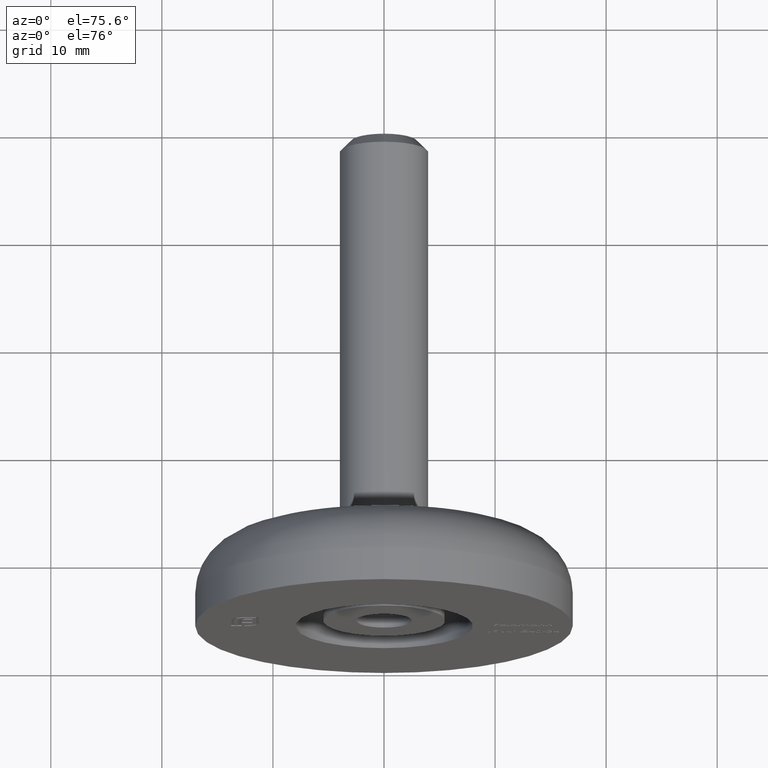
[diagram: clean part render]
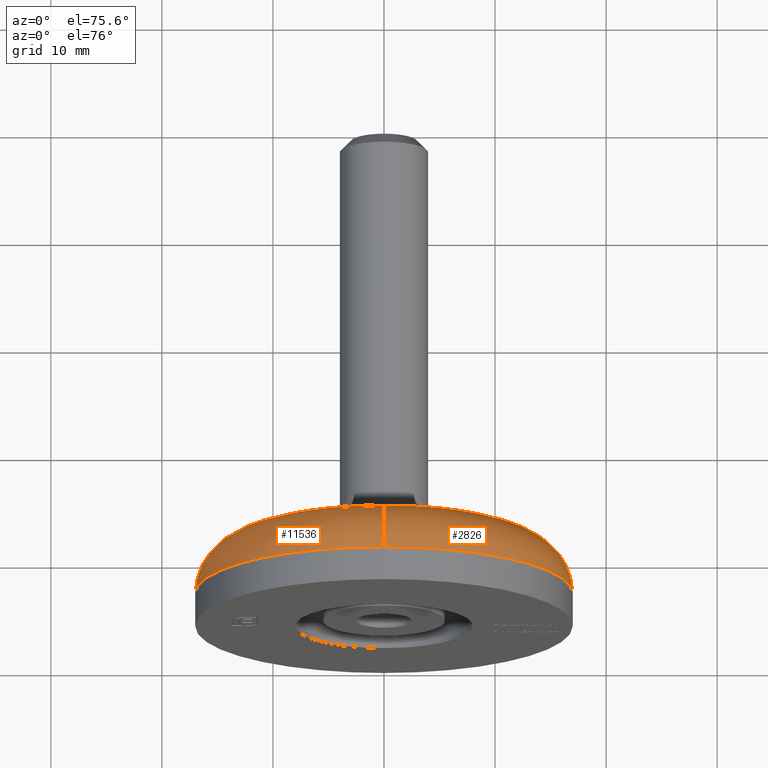
[diagram: same view with one multi-face feature highlighted, each face labeled with its STEP entity id]
A machine part, auxiliary view. The highlighted faces form ONE feature: a constant-radius fillet chain: 2 tangent blend faces with common blend radius 5 mm. The faces share edges in the B-rep.
Their STEP definitions:
[1] entity #2826 (Torus):
#54 = VERTEX_POINT ( 'NONE', #11134 ) ;
#205 = DIRECTION ( 'NONE',  ( -1.000000000000000000, 0.000000000000000000, 0.000000000000000000 ) ) ;
#220 = ORIENTED_EDGE ( 'NONE', *, *, #4275, .T. ) ;
#243 = CIRCLE ( 'NONE', #2223, 5.000000000000000888 ) ;
#447 = DIRECTION ( 'NONE',  ( 0.000000000000000000, 0.000000000000000000, 1.000000000000000000 ) ) ;
#471 = VERTEX_POINT ( 'NONE', #13565 ) ;
#637 = CARTESIAN_POINT ( 'NONE',  ( 0.000000000000000000, 7.999999999999998224, 0.000000000000000000 ) ) ;
#1417 = DIRECTION ( 'NONE',  ( 0.000000000000000000, 0.000000000000000000, 1.000000000000000000 ) ) ;
#1624 = CIRCLE ( 'NONE', #10822, 17.00000000000000000 ) ;
#1798 = DIRECTION ( 'NONE',  ( 0.000000000000000000, 0.000000000000000000, 1.000000000000000000 ) ) ;
#2223 = AXIS2_PLACEMENT_3D ( 'NONE', #9576, #205, #1417 ) ;
#2826 = ADVANCED_FACE ( 'NONE', ( #9404 ), #6311, .T. ) ;
#2898 = CARTESIAN_POINT ( 'NONE',  ( 1.469576158976823947E-15, 2.999999999999998224, -12.00000000000000000 ) ) ;
#2999 = EDGE_CURVE ( 'NONE', #5399, #471, #243, .T. ) ;
#4275 = EDGE_CURVE ( 'NONE', #7720, #54, #9375, .T. ) ;
#4514 = CARTESIAN_POINT ( 'NONE',  ( 2.081899558550500280E-15, 2.999999999999998224, 17.00000000000000000 ) ) ;
#4948 = AXIS2_PLACEMENT_3D ( 'NONE', #2898, #5178, #7518 ) ;
#5178 = DIRECTION ( 'NONE',  ( 1.000000000000000000, -0.000000000000000000, 1.224646799147353207E-16 ) ) ;
#5399 = VERTEX_POINT ( 'NONE', #4514 ) ;
#5567 = ORIENTED_EDGE ( 'NONE', *, *, #2999, .F. ) ;
#6099 = EDGE_CURVE ( 'NONE', #7720, #5399, #1624, .T. ) ;
#6311 = TOROIDAL_SURFACE ( 'NONE', #8332, 12.00000000000000000, 5.000000000000000000 ) ;
#6356 = EDGE_LOOP ( 'NONE', ( #13847, #220, #8221, #5567 ) ) ;
#6366 = DIRECTION ( 'NONE',  ( -0.000000000000000000, -1.000000000000000000, -0.000000000000000000 ) ) ;
#7518 = DIRECTION ( 'NONE',  ( 1.224646799147352961E-16, 0.000000000000000000, -1.000000000000000000 ) ) ;
#7720 = VERTEX_POINT ( 'NONE', #11957 ) ;
#8221 = ORIENTED_EDGE ( 'NONE', *, *, #13351, .F. ) ;
#8332 = AXIS2_PLACEMENT_3D ( 'NONE', #9960, #11153, #14875 ) ;
#8599 = CARTESIAN_POINT ( 'NONE',  ( 0.000000000000000000, 2.999999999999998224, 0.000000000000000000 ) ) ;
#8844 = DIRECTION ( 'NONE',  ( 0.000000000000000000, 1.000000000000000000, 0.000000000000000000 ) ) ;
#9375 = CIRCLE ( 'NONE', #4948, 5.000000000000000888 ) ;
#9404 = FACE_OUTER_BOUND ( 'NONE', #6356, .T. ) ;
#9576 = CARTESIAN_POINT ( 'NONE',  ( 0.000000000000000000, 2.999999999999998224, 12.00000000000000000 ) ) ;
#9621 = CIRCLE ( 'NONE', #13984, 12.00000000000000000 ) ;
#9960 = CARTESIAN_POINT ( 'NONE',  ( 0.000000000000000000, 2.999999999999998224, 0.000000000000000000 ) ) ;
#10822 = AXIS2_PLACEMENT_3D ( 'NONE', #8599, #6366, #447 ) ;
#11134 = CARTESIAN_POINT ( 'NONE',  ( 1.775737858763662015E-15, 7.999999999999998224, -12.00000000000000000 ) ) ;
#11153 = DIRECTION ( 'NONE',  ( 0.000000000000000000, 1.000000000000000000, 0.000000000000000000 ) ) ;
#11957 = CARTESIAN_POINT ( 'NONE',  ( 0.000000000000000000, 2.999999999999998224, -17.00000000000000000 ) ) ;
#13351 = EDGE_CURVE ( 'NONE', #471, #54, #9621, .T. ) ;
#13565 = CARTESIAN_POINT ( 'NONE',  ( 0.000000000000000000, 7.999999999999998224, 12.00000000000000000 ) ) ;
#13847 = ORIENTED_EDGE ( 'NONE', *, *, #6099, .F. ) ;
#13984 = AXIS2_PLACEMENT_3D ( 'NONE', #637, #8844, #1798 ) ;
#14875 = DIRECTION ( 'NONE',  ( 0.000000000000000000, 0.000000000000000000, 1.000000000000000000 ) ) ;
[2] entity #11536 (Torus):
#54 = VERTEX_POINT ( 'NONE', #11134 ) ;
#74 = CIRCLE ( 'NONE', #1738, 12.00000000000000000 ) ;
#205 = DIRECTION ( 'NONE',  ( -1.000000000000000000, 0.000000000000000000, 0.000000000000000000 ) ) ;
#243 = CIRCLE ( 'NONE', #2223, 5.000000000000000888 ) ;
#471 = VERTEX_POINT ( 'NONE', #13565 ) ;
#1315 = DIRECTION ( 'NONE',  ( -0.000000000000000000, -1.000000000000000000, -0.000000000000000000 ) ) ;
#1417 = DIRECTION ( 'NONE',  ( 0.000000000000000000, 0.000000000000000000, 1.000000000000000000 ) ) ;
#1545 = ORIENTED_EDGE ( 'NONE', *, *, #4275, .F. ) ;
#1738 = AXIS2_PLACEMENT_3D ( 'NONE', #10230, #1945, #3186 ) ;
#1945 = DIRECTION ( 'NONE',  ( 0.000000000000000000, 1.000000000000000000, 0.000000000000000000 ) ) ;
#2223 = AXIS2_PLACEMENT_3D ( 'NONE', #9576, #205, #1417 ) ;
#2897 = EDGE_CURVE ( 'NONE', #54, #471, #74, .T. ) ;
#2898 = CARTESIAN_POINT ( 'NONE',  ( 1.469576158976823947E-15, 2.999999999999998224, -12.00000000000000000 ) ) ;
#2999 = EDGE_CURVE ( 'NONE', #5399, #471, #243, .T. ) ;
#3186 = DIRECTION ( 'NONE',  ( 0.000000000000000000, 0.000000000000000000, 1.000000000000000000 ) ) ;
#3215 = AXIS2_PLACEMENT_3D ( 'NONE', #3712, #1315, #7264 ) ;
#3629 = ORIENTED_EDGE ( 'NONE', *, *, #7091, .F. ) ;
#3712 = CARTESIAN_POINT ( 'NONE',  ( 0.000000000000000000, 2.999999999999998224, 0.000000000000000000 ) ) ;
#4275 = EDGE_CURVE ( 'NONE', #7720, #54, #9375, .T. ) ;
#4514 = CARTESIAN_POINT ( 'NONE',  ( 2.081899558550500280E-15, 2.999999999999998224, 17.00000000000000000 ) ) ;
#4747 = DIRECTION ( 'NONE',  ( 0.000000000000000000, 1.000000000000000000, 0.000000000000000000 ) ) ;
#4948 = AXIS2_PLACEMENT_3D ( 'NONE', #2898, #5178, #7518 ) ;
#5178 = DIRECTION ( 'NONE',  ( 1.000000000000000000, -0.000000000000000000, 1.224646799147353207E-16 ) ) ;
#5399 = VERTEX_POINT ( 'NONE', #4514 ) ;
#5606 = ORIENTED_EDGE ( 'NONE', *, *, #2897, .F. ) ;
#6886 = TOROIDAL_SURFACE ( 'NONE', #10239, 12.00000000000000000, 5.000000000000000000 ) ;
#7091 = EDGE_CURVE ( 'NONE', #5399, #7720, #14310, .T. ) ;
#7264 = DIRECTION ( 'NONE',  ( 0.000000000000000000, 0.000000000000000000, 1.000000000000000000 ) ) ;
#7518 = DIRECTION ( 'NONE',  ( 1.224646799147352961E-16, 0.000000000000000000, -1.000000000000000000 ) ) ;
#7607 = FACE_OUTER_BOUND ( 'NONE', #8308, .T. ) ;
#7720 = VERTEX_POINT ( 'NONE', #11957 ) ;
#8308 = EDGE_LOOP ( 'NONE', ( #1545, #3629, #9410, #5606 ) ) ;
#9375 = CIRCLE ( 'NONE', #4948, 5.000000000000000888 ) ;
#9410 = ORIENTED_EDGE ( 'NONE', *, *, #2999, .T. ) ;
#9576 = CARTESIAN_POINT ( 'NONE',  ( 0.000000000000000000, 2.999999999999998224, 12.00000000000000000 ) ) ;
#10230 = CARTESIAN_POINT ( 'NONE',  ( 0.000000000000000000, 7.999999999999998224, 0.000000000000000000 ) ) ;
#10239 = AXIS2_PLACEMENT_3D ( 'NONE', #13077, #4747, #10772 ) ;
#10772 = DIRECTION ( 'NONE',  ( 0.000000000000000000, 0.000000000000000000, 1.000000000000000000 ) ) ;
#11134 = CARTESIAN_POINT ( 'NONE',  ( 1.775737858763662015E-15, 7.999999999999998224, -12.00000000000000000 ) ) ;
#11536 = ADVANCED_FACE ( 'NONE', ( #7607 ), #6886, .T. ) ;
#11957 = CARTESIAN_POINT ( 'NONE',  ( 0.000000000000000000, 2.999999999999998224, -17.00000000000000000 ) ) ;
#13077 = CARTESIAN_POINT ( 'NONE',  ( 0.000000000000000000, 2.999999999999998224, 0.000000000000000000 ) ) ;
#13565 = CARTESIAN_POINT ( 'NONE',  ( 0.000000000000000000, 7.999999999999998224, 12.00000000000000000 ) ) ;
#14310 = CIRCLE ( 'NONE', #3215, 17.00000000000000000 ) ;